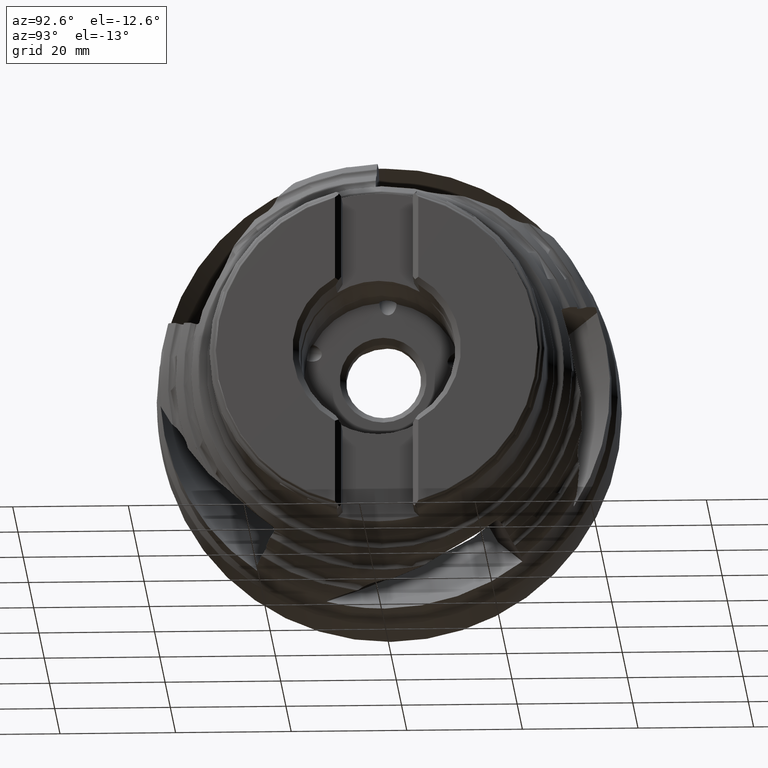
[diagram: clean part render]
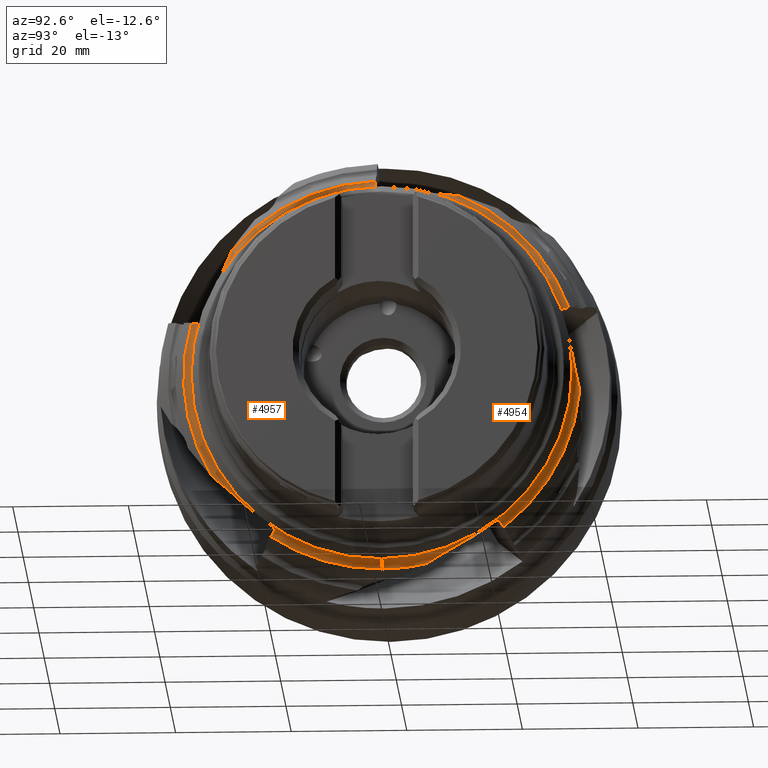
[diagram: same view with one multi-face feature highlighted, each face labeled with its STEP entity id]
A machine part, auxiliary view. The highlighted faces form ONE feature: a constant-radius fillet chain: 2 tangent blend faces with common blend radius 1.5 mm. The faces share edges in the B-rep.
Their STEP definitions:
[1] entity #4954 (Torus):
#315 = EDGE_CURVE ( 'NONE', #6890, #6876, #1453, .T. ) ;
#323 = EDGE_CURVE ( 'NONE', #6885, #6887, #1457, .T. ) ;
#330 = EDGE_CURVE ( 'NONE', #6879, #6878, #1460, .T. ) ;
#331 = EDGE_CURVE ( 'NONE', #6886, #6888, #830, .T. ) ;
#336 = EDGE_CURVE ( 'NONE', #6881, #6882, #838, .T. ) ;
#461 = AXIS2_PLACEMENT_3D ( 'NONE', #1727, #1526, #1543 ) ;
#465 = AXIS2_PLACEMENT_3D ( 'NONE', #1746, #1748, #1697 ) ;
#523 = AXIS2_PLACEMENT_3D ( 'NONE', #2104, #2096, #2163 ) ;
#830 = CIRCLE ( 'NONE', #461, 1.500000000000001300 ) ;
#838 = CIRCLE ( 'NONE', #465, 34.33679836575264900 ) ;
#945 = FACE_OUTER_BOUND ( 'NONE', #6492, .T. ) ;
#949 = TOROIDAL_SURFACE ( 'NONE', #523, 34.35477819669873200, 1.499999999999998200 ) ;
#1143 = CIRCLE ( 'NONE', #1940, 34.33679836575264900 ) ;
#1145 = CIRCLE ( 'NONE', #1926, 1.500000000000001300 ) ;
#1147 = CIRCLE ( 'NONE', #1944, 32.85477819669872400 ) ;
#1260 = CIRCLE ( 'NONE', #1995, 34.33679836575264900 ) ;
#1453 = B_SPLINE_CURVE_WITH_KNOTS ( 'NONE', 3,
 ( #1516, #1580, #1469, #1507, #1689, #1667, #1594, #1577, #1753, #1661, #1600, #1626, #1562, #1622 ),
 .UNSPECIFIED., .F., .F.,
 ( 4, 2, 2, 2, 2, 2, 4 ),
 ( 0.001099749272328053200, 0.004500736626076648800, 0.007901723979825244600, 0.01130271133357383700, 0.01300320501044813200, 0.01385345184888528300, 0.01470369868732243300 ),
 .UNSPECIFIED. ) ;
#1457 = B_SPLINE_CURVE_WITH_KNOTS ( 'NONE', 3,
 ( #1798, #1790, #1794, #1799 ),
 .UNSPECIFIED., .F., .F.,
 ( 4, 4 ),
 ( 1.734723475976807100E-017, 0.0004798398861037539800 ),
 .UNSPECIFIED. ) ;
#1460 = B_SPLINE_CURVE_WITH_KNOTS ( 'NONE', 3,
 ( #1765, #1845, #1800, #1717, #1623, #1617, #1656, #1703, #1673, #1536 ),
 .UNSPECIFIED., .F., .F.,
 ( 4, 2, 2, 2, 4 ),
 ( 0.0002260114413573287000, 0.0005694754351961963100, 0.0009129394290350639700, 0.001256403422873931500, 0.001599867416712799100 ),
 .UNSPECIFIED. ) ;
#1469 = CARTESIAN_POINT ( 'NONE',  ( 35.04683401583235300, 2.268914078732316300, 32.81891195447445100 ) ) ;
#1507 = CARTESIAN_POINT ( 'NONE',  ( 34.86144128666849400, 4.517259381532301000, 32.63351922531059300 ) ) ;
#1516 = CARTESIAN_POINT ( 'NONE',  ( 35.09986830833947400, 4.354196652457896800E-020, 32.87194624698155800 ) ) ;
#1526 = DIRECTION ( 'NONE',  ( -0.0000000000000000000, 1.000000000000000000, 1.224646799147353200E-016 ) ) ;
#1536 = CARTESIAN_POINT ( 'NONE',  ( 34.18125024197927800, 31.39449931361287200, 11.35729962702577300 ) ) ;
#1543 = DIRECTION ( 'NONE',  ( 0.0000000000000000000, -1.224646799147349500E-016, 1.000000000000000000 ) ) ;
#1560 = B_SPLINE_CURVE_WITH_KNOTS ( 'NONE', 3,
 ( #2302, #2321, #2322, #2323, #2324, #2325, #2326, #2327, #2328, #2329, #2330, #2331, #2332, #2333 ),
 .UNSPECIFIED., .F., .F.,
 ( 4, 2, 2, 2, 2, 2, 4 ),
 ( 0.007002110957614750300, 0.01042772690232394100, 0.01385334284703313200, 0.01727895879174232500, 0.01899176676409692500, 0.01984817075027422300, 0.02070457473645152500 ),
 .UNSPECIFIED. ) ;
#1562 = CARTESIAN_POINT ( 'NONE',  ( 33.82758236557923200, 13.15464473688919800, 31.59966030422133800 ) ) ;
#1577 = CARTESIAN_POINT ( 'NONE',  ( 34.05401712779833900, 10.63270310376406500, 31.82609506644044800 ) ) ;
#1580 = CARTESIAN_POINT ( 'NONE',  ( 35.09986830833947400, 1.133785510982318900, 32.87194624698155100 ) ) ;
#1590 = B_SPLINE_CURVE_WITH_KNOTS ( 'NONE', 3,
 ( #2639, #2657, #2658, #2659, #2660, #2661 ),
 .UNSPECIFIED., .F., .F.,
 ( 4, 2, 4 ),
 ( 0.002022708556577343900, 0.002538235437473716800, 0.003053762318370089200 ),
 .UNSPECIFIED. ) ;
#1594 = CARTESIAN_POINT ( 'NONE',  ( 34.27405978638537200, 8.964817630175950600, 32.04613772502745700 ) ) ;
#1599 = B_SPLINE_CURVE_WITH_KNOTS ( 'NONE', 3,
 ( #2709, #2713, #2714, #2715 ),
 .UNSPECIFIED., .F., .F.,
 ( 4, 4 ),
 ( 5.204170427930421300E-018, 0.0002260114413573287000 ),
 .UNSPECIFIED. ) ;
#1600 = CARTESIAN_POINT ( 'NONE',  ( 33.87691074784719800, 12.31047665211210100, 31.64898868648930000 ) ) ;
#1604 = B_SPLINE_CURVE_WITH_KNOTS ( 'NONE', 3,
 ( #2723, #2739, #2740, #2741, #2742, #2743 ),
 .UNSPECIFIED., .F., .F.,
 ( 4, 2, 4 ),
 ( 0.0004798398861037539800, 0.001039853651408272200, 0.001599867416712790200 ),
 .UNSPECIFIED. ) ;
#1610 = B_SPLINE_CURVE_WITH_KNOTS ( 'NONE', 3,
 ( #2744, #2757, #2758, #2759, #2760, #2761, #2762, #2763, #2764, #2765, #2766, #2767, #2768, #2769 ),
 .UNSPECIFIED., .F., .F.,
 ( 4, 2, 2, 2, 2, 2, 4 ),
 ( 0.003541086446675421200, 0.006961146536852033000, 0.01038120662702864800, 0.01380126671720526300, 0.01551129676229357100, 0.01636631178483772400, 0.01722132680738187500 ),
 .UNSPECIFIED. ) ;
#1617 = CARTESIAN_POINT ( 'NONE',  ( 34.60447577448460500, 31.11406655946935700, 11.10542071639351700 ) ) ;
#1622 = CARTESIAN_POINT ( 'NONE',  ( 33.82627103026551700, 13.43726402395549400, 31.59834896890761900 ) ) ;
#1623 = CARTESIAN_POINT ( 'NONE',  ( 34.77307937314667200, 31.08547222042608700, 10.94924146412639700 ) ) ;
#1626 = CARTESIAN_POINT ( 'NONE',  ( 33.84017839001941000, 12.87294269956251600, 31.61225632866152000 ) ) ;
#1656 = CARTESIAN_POINT ( 'NONE',  ( 34.51636299049276600, 31.14382836605550500, 11.17322802261257300 ) ) ;
#1661 = CARTESIAN_POINT ( 'NONE',  ( 33.90130511847371500, 12.02956182918720400, 31.67338305711581000 ) ) ;
#1667 = CARTESIAN_POINT ( 'NONE',  ( 34.43725377605961300, 7.856636565922880100, 32.20933171470170500 ) ) ;
#1673 = CARTESIAN_POINT ( 'NONE',  ( 34.25652023321642000, 31.30988117257353700, 11.32980552634348300 ) ) ;
#1689 = CARTESIAN_POINT ( 'NONE',  ( 34.73032573723448700, 5.632717076338067000, 32.50240367587658600 ) ) ;
#1697 = DIRECTION ( 'NONE',  ( 0.0000000000000000000, 0.0000000000000000000, 1.000000000000000000 ) ) ;
#1703 = CARTESIAN_POINT ( 'NONE',  ( 34.34110969438432200, 31.24216656594062900, 11.28638469635522600 ) ) ;
#1717 = CARTESIAN_POINT ( 'NONE',  ( 34.85074921128180100, 31.08706996902821700, 10.86358628769541000 ) ) ;
#1727 = CARTESIAN_POINT ( 'NONE',  ( 35.32616326828768600, 4.207246915400437300E-015, -34.35477819669873200 ) ) ;
#1746 = CARTESIAN_POINT ( 'NONE',  ( 33.82627103026551700, 0.0000000000000000000, 0.0000000000000000000 ) ) ;
#1748 = DIRECTION ( 'NONE',  ( -1.000000000000000000, -0.0000000000000000000, -0.0000000000000000000 ) ) ;
#1753 = CARTESIAN_POINT ( 'NONE',  ( 33.98481882349442900, 11.18960613829630700, 31.75689676213652000 ) ) ;
#1765 = CARTESIAN_POINT ( 'NONE',  ( 35.06764044308788200, 31.16648417471704100, 10.46719314166492200 ) ) ;
#1790 = CARTESIAN_POINT ( 'NONE',  ( 35.09930682461385500, 19.53388613575912200, -26.43906706709187700 ) ) ;
#1794 = CARTESIAN_POINT ( 'NONE',  ( 35.04739322108449100, 19.66372318271217200, -26.35057720417948700 ) ) ;
#1798 = CARTESIAN_POINT ( 'NONE',  ( 35.09973634728064700, 19.40246935280013600, -26.53507786801925400 ) ) ;
#1799 = CARTESIAN_POINT ( 'NONE',  ( 34.96565778634457200, 19.78522031556243700, -26.28445184842701800 ) ) ;
#1800 = CARTESIAN_POINT ( 'NONE',  ( 34.98293922455069100, 31.11258910392777500, 10.67530709948415300 ) ) ;
#1845 = CARTESIAN_POINT ( 'NONE',  ( 35.03615939428723900, 31.13654391811532900, 10.57364238398023900 ) ) ;
#1926 = AXIS2_PLACEMENT_3D ( 'NONE', #2337, #2339, #2340 ) ;
#1940 = AXIS2_PLACEMENT_3D ( 'NONE', #2320, #2335, #2336 ) ;
#1944 = AXIS2_PLACEMENT_3D ( 'NONE', #2334, #2341, #2342 ) ;
#1995 = AXIS2_PLACEMENT_3D ( 'NONE', #2860, #2861, #2862 ) ;
#2096 = DIRECTION ( 'NONE',  ( -1.000000000000000000, -0.0000000000000000000, -0.0000000000000000000 ) ) ;
#2104 = CARTESIAN_POINT ( 'NONE',  ( 35.32616326828768600, 0.0000000000000000000, 0.0000000000000000000 ) ) ;
#2163 = DIRECTION ( 'NONE',  ( 0.0000000000000000000, 0.0000000000000000000, 1.000000000000000000 ) ) ;
#2302 = CARTESIAN_POINT ( 'NONE',  ( 35.09973634728064700, 19.40246935280013600, -26.53507786801925400 ) ) ;
#2320 = CARTESIAN_POINT ( 'NONE',  ( 33.82627103026551700, 0.0000000000000000000, 0.0000000000000000000 ) ) ;
#2321 = CARTESIAN_POINT ( 'NONE',  ( 35.10274523196889600, 18.48187079863964800, -27.20765105484825200 ) ) ;
#2322 = CARTESIAN_POINT ( 'NONE',  ( 35.05246093961595500, 17.53380769627639400, -27.83430441439914900 ) ) ;
#2323 = CARTESIAN_POINT ( 'NONE',  ( 34.86984145578198000, 15.59539670015078100, -29.01691234380295400 ) ) ;
#2324 = CARTESIAN_POINT ( 'NONE',  ( 34.73849776581628400, 14.60583758616947700, -29.57351939487243100 ) ) ;
#2325 = CARTESIAN_POINT ( 'NONE',  ( 34.44398989888866000, 12.61810133176931200, -30.65366257472124900 ) ) ;
#2326 = CARTESIAN_POINT ( 'NONE',  ( 34.27945271686851200, 11.61770613821373700, -31.17711308584840400 ) ) ;
#2327 = CARTESIAN_POINT ( 'NONE',  ( 34.05706117549890200, 10.12633344961922300, -31.98576770646424800 ) ) ;
#2328 = CARTESIAN_POINT ( 'NONE',  ( 33.98702751029912200, 9.630738653757251900, -32.25927203141572600 ) ) ;
#2329 = CARTESIAN_POINT ( 'NONE',  ( 33.90247179963162700, 8.896255449728840900, -32.68838870897717900 ) ) ;
#2330 = CARTESIAN_POINT ( 'NONE',  ( 33.87776152550586800, 8.652916637372749500, -32.83464112630611700 ) ) ;
#2331 = CARTESIAN_POINT ( 'NONE',  ( 33.84041908950681000, 8.171414138882354900, -33.13831537945993900 ) ) ;
#2332 = CARTESIAN_POINT ( 'NONE',  ( 33.82759198821285200, 7.933166611062579100, -33.29555717145956400 ) ) ;
#2333 = CARTESIAN_POINT ( 'NONE',  ( 33.82627103026551700, 7.702068567432211100, -33.46182693447752900 ) ) ;
#2334 = CARTESIAN_POINT ( 'NONE',  ( 35.32616326828768600, 0.0000000000000000000, 0.0000000000000000000 ) ) ;
#2335 = DIRECTION ( 'NONE',  ( -1.000000000000000000, -0.0000000000000000000, -0.0000000000000000000 ) ) ;
#2336 = DIRECTION ( 'NONE',  ( 0.0000000000000000000, 0.0000000000000000000, 1.000000000000000000 ) ) ;
#2337 = CARTESIAN_POINT ( 'NONE',  ( 35.32616326828768600, 0.0000000000000000000, 34.35477819669873200 ) ) ;
#2339 = DIRECTION ( 'NONE',  ( 0.0000000000000000000, -1.000000000000000000, 0.0000000000000000000 ) ) ;
#2340 = DIRECTION ( 'NONE',  ( 0.0000000000000000000, 0.0000000000000000000, -1.000000000000000000 ) ) ;
#2341 = DIRECTION ( 'NONE',  ( -1.000000000000000000, -0.0000000000000000000, -0.0000000000000000000 ) ) ;
#2342 = DIRECTION ( 'NONE',  ( 0.0000000000000000000, 0.0000000000000000000, 1.000000000000000000 ) ) ;
#2639 = CARTESIAN_POINT ( 'NONE',  ( 34.18125024197927800, 20.50286763559831000, -26.34834455307607800 ) ) ;
#2657 = CARTESIAN_POINT ( 'NONE',  ( 34.06877970659176900, 20.58101111361476800, -26.45589982342065800 ) ) ;
#2658 = CARTESIAN_POINT ( 'NONE',  ( 33.98161448480878700, 20.66858975805927300, -26.57644148625345400 ) ) ;
#2659 = CARTESIAN_POINT ( 'NONE',  ( 33.86005610663590200, 20.86014875289247100, -26.84009982344548500 ) ) ;
#2660 = CARTESIAN_POINT ( 'NONE',  ( 33.82835214958462400, 20.96012617059541600, -26.97770693362721800 ) ) ;
#2661 = CARTESIAN_POINT ( 'NONE',  ( 33.82627103026554500, 21.06222319574180100, -27.11823143317259300 ) ) ;
#2709 = CARTESIAN_POINT ( 'NONE',  ( 35.09973634728064000, 31.23205147963332400, 10.25305490191716700 ) ) ;
#2713 = CARTESIAN_POINT ( 'NONE',  ( 35.09953403596841800, 31.20817026469866900, 10.32589903081031000 ) ) ;
#2714 = CARTESIAN_POINT ( 'NONE',  ( 35.08835608531507000, 31.18618592124642700, 10.39714577973197700 ) ) ;
#2715 = CARTESIAN_POINT ( 'NONE',  ( 35.06764044308788200, 31.16648417471704100, 10.46719314166492200 ) ) ;
#2723 = CARTESIAN_POINT ( 'NONE',  ( 34.96565778634457200, 19.78522031556243700, -26.28445184842701800 ) ) ;
#2739 = CARTESIAN_POINT ( 'NONE',  ( 34.87026561513683700, 19.92701775427404300, -26.20727796078351800 ) ) ;
#2740 = CARTESIAN_POINT ( 'NONE',  ( 34.73479533585118900, 20.06109157676003800, -26.16051697668862300 ) ) ;
#2741 = CARTESIAN_POINT ( 'NONE',  ( 34.45260669057667300, 20.30562781364706000, -26.17130861716482200 ) ) ;
#2742 = CARTESIAN_POINT ( 'NONE',  ( 34.30397702546540700, 20.41759821215033800, -26.23098126027328500 ) ) ;
#2743 = CARTESIAN_POINT ( 'NONE',  ( 34.18125024197927800, 20.50286763559831000, -26.34834455307607800 ) ) ;
#2744 = CARTESIAN_POINT ( 'NONE',  ( 35.09973634728064000, 31.23205147963332400, 10.25305490191716700 ) ) ;
#2757 = CARTESIAN_POINT ( 'NONE',  ( 35.10274399171078100, 31.58707959114091700, 9.170123669723986700 ) ) ;
#2758 = CARTESIAN_POINT ( 'NONE',  ( 35.05251197441403800, 31.88984009994692300, 8.075768413445718600 ) ) ;
#2759 = CARTESIAN_POINT ( 'NONE',  ( 34.87024660562452300, 32.41505332638350000, 5.869505189588328300 ) ) ;
#2760 = CARTESIAN_POINT ( 'NONE',  ( 34.73916772524143700, 32.63847560404671100, 4.757701956451888300 ) ) ;
#2761 = CARTESIAN_POINT ( 'NONE',  ( 34.44476090236824500, 33.05161655469196800, 2.533464362260764000 ) ) ;
#2762 = CARTESIAN_POINT ( 'NONE',  ( 34.28013597797244200, 33.24044495888041700, 1.419572845203360000 ) ) ;
#2763 = CARTESIAN_POINT ( 'NONE',  ( 34.05765583528301500, 33.54859482563534800, -0.2487757920777781100 ) ) ;
#2764 = CARTESIAN_POINT ( 'NONE',  ( 33.98759586819763000, 33.65548697039542200, -0.8044748022489047700 ) ) ;
#2765 = CARTESIAN_POINT ( 'NONE',  ( 33.90288829348293800, 33.83658260189934500, -1.635949315968758400 ) ) ;
#2766 = CARTESIAN_POINT ( 'NONE',  ( 33.87811177676150700, 33.90047080626530400, -1.912755483121810100 ) ) ;
#2767 = CARTESIAN_POINT ( 'NONE',  ( 33.84060963572458300, 34.04051984543970400, -2.465141583083271900 ) ) ;
#2768 = CARTESIAN_POINT ( 'NONE',  ( 33.82760783763753000, 34.11639942484212200, -2.740749617857284500 ) ) ;
#2769 = CARTESIAN_POINT ( 'NONE',  ( 33.82627103026551700, 34.20415863235320600, -3.015170685578336700 ) ) ;
#2815 = CARTESIAN_POINT ( 'NONE',  ( 34.18125024197927800, 31.39449931361287200, 11.35729962702577300 ) ) ;
#2821 = CARTESIAN_POINT ( 'NONE',  ( 34.06877970659176900, 31.52093811704261800, 11.39838208462822100 ) ) ;
#2822 = CARTESIAN_POINT ( 'NONE',  ( 33.98161448480878700, 31.66264334044247900, 11.44442490276991900 ) ) ;
#2823 = CARTESIAN_POINT ( 'NONE',  ( 33.86005610663590200, 31.97259230493335000, 11.54513342616000000 ) ) ;
#2824 = CARTESIAN_POINT ( 'NONE',  ( 33.82835214958462400, 32.13435916488416000, 11.59769466515577300 ) ) ;
#2825 = CARTESIAN_POINT ( 'NONE',  ( 33.82627103026554500, 32.29955562172126100, 11.65137024773003900 ) ) ;
#2860 = CARTESIAN_POINT ( 'NONE',  ( 33.82627103026551700, 0.0000000000000000000, 0.0000000000000000000 ) ) ;
#2861 = DIRECTION ( 'NONE',  ( -1.000000000000000000, -0.0000000000000000000, -0.0000000000000000000 ) ) ;
#2862 = DIRECTION ( 'NONE',  ( 0.0000000000000000000, 0.0000000000000000000, 1.000000000000000000 ) ) ;
#3550 = B_SPLINE_CURVE_WITH_KNOTS ( 'NONE', 3,
 ( #2815, #2821, #2822, #2823, #2824, #2825 ),
 .UNSPECIFIED., .F., .F.,
 ( 4, 2, 4 ),
 ( 0.002022708556577493500, 0.002538235437473866000, 0.003053762318370238000 ),
 .UNSPECIFIED. ) ;
#3833 = CARTESIAN_POINT ( 'NONE',  ( 33.82627103026551700, 13.43726402395549400, 31.59834896890761900 ) ) ;
#3834 = CARTESIAN_POINT ( 'NONE',  ( 33.82627103026554500, 32.29955562172126100, 11.65137024773003900 ) ) ;
#3835 = CARTESIAN_POINT ( 'NONE',  ( 34.18125024197927800, 31.39449931361287200, 11.35729962702577300 ) ) ;
#3836 = CARTESIAN_POINT ( 'NONE',  ( 35.06764044308788200, 31.16648417471704100, 10.46719314166492200 ) ) ;
#3837 = CARTESIAN_POINT ( 'NONE',  ( 35.09973634728064000, 31.23205147963332400, 10.25305490191716700 ) ) ;
#3838 = CARTESIAN_POINT ( 'NONE',  ( 33.82627103026551700, 34.20415863235320600, -3.015170685578336700 ) ) ;
#3839 = CARTESIAN_POINT ( 'NONE',  ( 33.82627103026554500, 21.06222319574180100, -27.11823143317259300 ) ) ;
#3840 = CARTESIAN_POINT ( 'NONE',  ( 34.18125024197927800, 20.50286763559831000, -26.34834455307607800 ) ) ;
#3842 = CARTESIAN_POINT ( 'NONE',  ( 35.09973634728064700, 19.40246935280013600, -26.53507786801925400 ) ) ;
#3843 = CARTESIAN_POINT ( 'NONE',  ( 33.82627103026551700, 4.205045021158705800E-015, -34.33679836575264900 ) ) ;
#3844 = CARTESIAN_POINT ( 'NONE',  ( 34.96565778634457200, 19.78522031556243700, -26.28445184842701800 ) ) ;
#3845 = CARTESIAN_POINT ( 'NONE',  ( 35.32616326828768600, 4.023549895528334600E-015, -32.85477819669872400 ) ) ;
#3846 = CARTESIAN_POINT ( 'NONE',  ( 35.32616326828768600, 0.0000000000000000000, 32.85477819669872400 ) ) ;
#3847 = CARTESIAN_POINT ( 'NONE',  ( 35.09986830833947400, 4.354196652457896800E-020, 32.87194624698155800 ) ) ;
#3858 = CARTESIAN_POINT ( 'NONE',  ( 33.82627103026551700, 7.702068567432211100, -33.46182693447752900 ) ) ;
#4954 = ADVANCED_FACE ( 'NONE', ( #945 ), #949, .F. ) ;
#5067 = EDGE_CURVE ( 'NONE', #6885, #6901, #1560, .T. ) ;
#5068 = EDGE_CURVE ( 'NONE', #6901, #6886, #1143, .T. ) ;
#5069 = EDGE_CURVE ( 'NONE', #6890, #6889, #1145, .T. ) ;
#5070 = EDGE_CURVE ( 'NONE', #6889, #6888, #1147, .T. ) ;
#5146 = EDGE_CURVE ( 'NONE', #6883, #6882, #1590, .T. ) ;
#5156 = EDGE_CURVE ( 'NONE', #6880, #6879, #1599, .T. ) ;
#5161 = EDGE_CURVE ( 'NONE', #6887, #6883, #1604, .T. ) ;
#5163 = EDGE_CURVE ( 'NONE', #6880, #6881, #1610, .T. ) ;
#5177 = EDGE_CURVE ( 'NONE', #6878, #6877, #3550, .T. ) ;
#5189 = EDGE_CURVE ( 'NONE', #6876, #6877, #1260, .T. ) ;
#5437 = ORIENTED_EDGE ( 'NONE', *, *, #336, .F. ) ;
#5438 = ORIENTED_EDGE ( 'NONE', *, *, #5156, .T. ) ;
#5439 = ORIENTED_EDGE ( 'NONE', *, *, #5163, .F. ) ;
#5441 = ORIENTED_EDGE ( 'NONE', *, *, #5146, .T. ) ;
#5442 = ORIENTED_EDGE ( 'NONE', *, *, #323, .T. ) ;
#5443 = ORIENTED_EDGE ( 'NONE', *, *, #5161, .T. ) ;
#5445 = ORIENTED_EDGE ( 'NONE', *, *, #5067, .F. ) ;
#5446 = ORIENTED_EDGE ( 'NONE', *, *, #315, .F. ) ;
#5447 = ORIENTED_EDGE ( 'NONE', *, *, #5189, .F. ) ;
#5448 = ORIENTED_EDGE ( 'NONE', *, *, #5177, .T. ) ;
#5449 = ORIENTED_EDGE ( 'NONE', *, *, #330, .T. ) ;
#5453 = ORIENTED_EDGE ( 'NONE', *, *, #331, .F. ) ;
#5454 = ORIENTED_EDGE ( 'NONE', *, *, #5070, .T. ) ;
#5460 = ORIENTED_EDGE ( 'NONE', *, *, #5068, .F. ) ;
#5462 = ORIENTED_EDGE ( 'NONE', *, *, #5069, .T. ) ;
#6492 = EDGE_LOOP ( 'NONE', ( #5462, #5454, #5453, #5460, #5445, #5442, #5443, #5441, #5437, #5439, #5438, #5449, #5448, #5447, #5446 ) ) ;
#6876 = VERTEX_POINT ( 'NONE', #3833 ) ;
#6877 = VERTEX_POINT ( 'NONE', #3834 ) ;
#6878 = VERTEX_POINT ( 'NONE', #3835 ) ;
#6879 = VERTEX_POINT ( 'NONE', #3836 ) ;
#6880 = VERTEX_POINT ( 'NONE', #3837 ) ;
#6881 = VERTEX_POINT ( 'NONE', #3838 ) ;
#6882 = VERTEX_POINT ( 'NONE', #3839 ) ;
#6883 = VERTEX_POINT ( 'NONE', #3840 ) ;
#6885 = VERTEX_POINT ( 'NONE', #3842 ) ;
#6886 = VERTEX_POINT ( 'NONE', #3843 ) ;
#6887 = VERTEX_POINT ( 'NONE', #3844 ) ;
#6888 = VERTEX_POINT ( 'NONE', #3845 ) ;
#6889 = VERTEX_POINT ( 'NONE', #3846 ) ;
#6890 = VERTEX_POINT ( 'NONE', #3847 ) ;
#6901 = VERTEX_POINT ( 'NONE', #3858 ) ;
[2] entity #4957 (Torus):
#331 = EDGE_CURVE ( 'NONE', #6886, #6888, #830, .T. ) ;
#461 = AXIS2_PLACEMENT_3D ( 'NONE', #1727, #1526, #1543 ) ;
#527 = AXIS2_PLACEMENT_3D ( 'NONE', #2139, #2116, #2225 ) ;
#830 = CIRCLE ( 'NONE', #461, 1.500000000000001300 ) ;
#948 = FACE_OUTER_BOUND ( 'NONE', #6297, .T. ) ;
#955 = TOROIDAL_SURFACE ( 'NONE', #527, 34.35477819669873200, 1.499999999999998200 ) ;
#1145 = CIRCLE ( 'NONE', #1926, 1.500000000000001300 ) ;
#1225 = CIRCLE ( 'NONE', #1970, 34.33679836575264900 ) ;
#1236 = CIRCLE ( 'NONE', #1980, 32.85477819669872400 ) ;
#1240 = CIRCLE ( 'NONE', #1979, 34.33679836575264900 ) ;
#1261 = CIRCLE ( 'NONE', #1993, 34.33679836575264900 ) ;
#1526 = DIRECTION ( 'NONE',  ( -0.0000000000000000000, 1.000000000000000000, 1.224646799147353200E-016 ) ) ;
#1543 = DIRECTION ( 'NONE',  ( 0.0000000000000000000, -1.224646799147349500E-016, 1.000000000000000000 ) ) ;
#1553 = B_SPLINE_CURVE_WITH_KNOTS ( 'NONE', 3,
 ( #2299, #2303, #2304, #2305, #2306, #2307 ),
 .UNSPECIFIED., .F., .F.,
 ( 4, 2, 4 ),
 ( 0.0005539644633828249500, 0.001069532628606011600, 0.001585100793829198400 ),
 .UNSPECIFIED. ) ;
#1591 = B_SPLINE_CURVE_WITH_KNOTS ( 'NONE', 3,
 ( #2662, #2666, #2667, #2668, #2669, #2670, #2671, #2672, #2673, #2674, #2675, #2676, #2677, #2678 ),
 .UNSPECIFIED., .F., .F.,
 ( 4, 2, 2, 2, 2, 2, 4 ),
 ( 0.002832512347660119100, 0.006256167819388971600, 0.009679823291117824900, 0.01310347876284667300, 0.01481530649871109000, 0.01567122036664329900, 0.01652713423457550400 ),
 .UNSPECIFIED. ) ;
#1593 = B_SPLINE_CURVE_WITH_KNOTS ( 'NONE', 3,
 ( #2685, #2689, #2690, #2691, #2692, #2693 ),
 .UNSPECIFIED., .F., .F.,
 ( 4, 2, 4 ),
 ( 0.002022708556577620600, 0.002538235437474000400, 0.003053762318370380200 ),
 .UNSPECIFIED. ) ;
#1596 = B_SPLINE_CURVE_WITH_KNOTS ( 'NONE', 3,
 ( #2682, #2695, #2696, #2697, #2698, #2699, #2700, #2701, #2702, #2703, #2704, #2705 ),
 .UNSPECIFIED., .F., .F.,
 ( 4, 2, 2, 2, 2, 4 ),
 ( 0.0000000000000000000, 0.0003999668541782024300, 0.0007999337083564048500, 0.001199900562534607300, 0.001399883989623700500, 0.001599867416712793700 ),
 .UNSPECIFIED. ) ;
#1602 = B_SPLINE_CURVE_WITH_KNOTS ( 'NONE', 3,
 ( #2720, #2724, #2725, #2726, #2727, #2728, #2729, #2730, #2731, #2732, #2733, #2734, #2735, #2736 ),
 .UNSPECIFIED., .F., .F.,
 ( 4, 2, 2, 2, 2, 2, 4 ),
 ( 0.004969955442742871700, 0.008391299156111132300, 0.01181264286947939500, 0.01523398658284765500, 0.01694465843953178700, 0.01779999436787385600, 0.01865533029621592100 ),
 .UNSPECIFIED. ) ;
#1607 = B_SPLINE_CURVE_WITH_KNOTS ( 'NONE', 3,
 ( #2738, #2745, #2746, #2747, #2748, #2749, #2750, #2751, #2752, #2753, #2754, #2755 ),
 .UNSPECIFIED., .F., .F.,
 ( 4, 2, 2, 2, 2, 4 ),
 ( 6.776263578034403900E-020, 0.0003999668541781233300, 0.0007999337083562467700, 0.001199900562534370300, 0.001399883989623426400, 0.001599867416712482700 ),
 .UNSPECIFIED. ) ;
#1613 = B_SPLINE_CURVE_WITH_KNOTS ( 'NONE', 3,
 ( #2790, #2794, #2795, #2796, #2797, #2798, #2799, #2800, #2801, #2802, #2803, #2804 ),
 .UNSPECIFIED., .F., .F.,
 ( 4, 2, 2, 2, 2, 4 ),
 ( 3.469446951953614200E-018, 0.0003999668541782058900, 0.0007999337083564083200, 0.001199900562534610700, 0.001399883989623704400, 0.001599867416712798200 ),
 .UNSPECIFIED. ) ;
#1727 = CARTESIAN_POINT ( 'NONE',  ( 35.32616326828768600, 4.207246915400437300E-015, -34.35477819669873200 ) ) ;
#1926 = AXIS2_PLACEMENT_3D ( 'NONE', #2337, #2339, #2340 ) ;
#1970 = AXIS2_PLACEMENT_3D ( 'NONE', #2656, #2663, #2664 ) ;
#1979 = AXIS2_PLACEMENT_3D ( 'NONE', #2778, #2779, #2780 ) ;
#1980 = AXIS2_PLACEMENT_3D ( 'NONE', #2756, #2771, #2772 ) ;
#1993 = AXIS2_PLACEMENT_3D ( 'NONE', #2856, #2864, #2865 ) ;
#2116 = DIRECTION ( 'NONE',  ( -1.000000000000000000, -0.0000000000000000000, -0.0000000000000000000 ) ) ;
#2139 = CARTESIAN_POINT ( 'NONE',  ( 35.32616326828768600, 0.0000000000000000000, 0.0000000000000000000 ) ) ;
#2225 = DIRECTION ( 'NONE',  ( 0.0000000000000000000, 0.0000000000000000000, 1.000000000000000000 ) ) ;
#2299 = CARTESIAN_POINT ( 'NONE',  ( 34.18125024197948400, -1.100000000000002100, 33.36754174299422000 ) ) ;
#2303 = CARTESIAN_POINT ( 'NONE',  ( 34.06923645151454100, -1.100000000000001900, 33.49994747383661300 ) ) ;
#2304 = CARTESIAN_POINT ( 'NONE',  ( 33.98138296355968200, -1.100000000000002100, 33.65010667120982600 ) ) ;
#2305 = CARTESIAN_POINT ( 'NONE',  ( 33.86028953672717300, -1.100000000000001900, 33.97475795449895500 ) ) ;
#2306 = CARTESIAN_POINT ( 'NONE',  ( 33.82834462896003200, -1.100000000000002100, 34.14610412668474000 ) ) ;
#2307 = CARTESIAN_POINT ( 'NONE',  ( 33.82627103026551700, -1.100000000000002300, 34.31917426177899700 ) ) ;
#2337 = CARTESIAN_POINT ( 'NONE',  ( 35.32616326828768600, 0.0000000000000000000, 34.35477819669873200 ) ) ;
#2339 = DIRECTION ( 'NONE',  ( 0.0000000000000000000, -1.000000000000000000, 0.0000000000000000000 ) ) ;
#2340 = DIRECTION ( 'NONE',  ( 0.0000000000000000000, 0.0000000000000000000, -1.000000000000000000 ) ) ;
#2656 = CARTESIAN_POINT ( 'NONE',  ( 33.82627103026551700, 0.0000000000000000000, 0.0000000000000000000 ) ) ;
#2662 = CARTESIAN_POINT ( 'NONE',  ( 35.09973634728064000, -31.29385487850846200, 10.06284359865769500 ) ) ;
#2663 = DIRECTION ( 'NONE',  ( -1.000000000000000000, -0.0000000000000000000, -0.0000000000000000000 ) ) ;
#2664 = DIRECTION ( 'NONE',  ( 0.0000000000000000000, 0.0000000000000000000, 1.000000000000000000 ) ) ;
#2666 = CARTESIAN_POINT ( 'NONE',  ( 35.10275159733462400, -30.94366433118102900, 11.15037683518552700 ) ) ;
#2667 = CARTESIAN_POINT ( 'NONE',  ( 35.05218908000477300, -30.54414339379909300, 12.21635210372982900 ) ) ;
#2668 = CARTESIAN_POINT ( 'NONE',  ( 34.86957477607551700, -29.67167893180843700, 14.31056931399014900 ) ) ;
#2669 = CARTESIAN_POINT ( 'NONE',  ( 34.73842996126909800, -29.19901035979270500, 15.34090006101292000 ) ) ;
#2670 = CARTESIAN_POINT ( 'NONE',  ( 34.44388474982513100, -28.22569669996952200, 17.38328316167886500 ) ) ;
#2671 = CARTESIAN_POINT ( 'NONE',  ( 34.27934624156044000, -27.72404102894975600, 18.39476276404606400 ) ) ;
#2672 = CARTESIAN_POINT ( 'NONE',  ( 34.05695081873986400, -26.99276445333381200, 19.92571393580896500 ) ) ;
#2673 = CARTESIAN_POINT ( 'NONE',  ( 33.98686982480060000, -26.75238133650150700, 20.43875023678038600 ) ) ;
#2674 = CARTESIAN_POINT ( 'NONE',  ( 33.90237337134774300, -26.41054471276680700, 21.21737891882120400 ) ) ;
#2675 = CARTESIAN_POINT ( 'NONE',  ( 33.87770445320826000, -26.29976786120694100, 21.47848471513633200 ) ) ;
#2676 = CARTESIAN_POINT ( 'NONE',  ( 33.84044574366351600, -26.08916061255507300, 22.00609546028129400 ) ) ;
#2677 = CARTESIAN_POINT ( 'NONE',  ( 33.82759779402281500, -25.98909626499362000, 22.27248501702055300 ) ) ;
#2678 = CARTESIAN_POINT ( 'NONE',  ( 33.82627103026551700, -25.89947274974256400, 22.54402433674381000 ) ) ;
#2682 = CARTESIAN_POINT ( 'NONE',  ( 35.09973634728064700, -19.24066595392476800, -26.65263491847802500 ) ) ;
#2685 = CARTESIAN_POINT ( 'NONE',  ( 34.18125024197928500, -18.72303024797302800, -27.64147210811980700 ) ) ;
#2689 = CARTESIAN_POINT ( 'NONE',  ( 34.06877970659177600, -18.80117372598948200, -27.74902737846439000 ) ) ;
#2690 = CARTESIAN_POINT ( 'NONE',  ( 33.98161448480878700, -18.88875237043398800, -27.86956904129718600 ) ) ;
#2691 = CARTESIAN_POINT ( 'NONE',  ( 33.86005610663590200, -19.08031136526718500, -28.13322737848922400 ) ) ;
#2692 = CARTESIAN_POINT ( 'NONE',  ( 33.82835214958462400, -19.18028878297013100, -28.27083448867096000 ) ) ;
#2693 = CARTESIAN_POINT ( 'NONE',  ( 33.82627103026554500, -19.28238580811651200, -28.41135898821633200 ) ) ;
#2695 = CARTESIAN_POINT ( 'NONE',  ( 35.09937832195843300, -19.13070361913523600, -26.73208468754546600 ) ) ;
#2696 = CARTESIAN_POINT ( 'NONE',  ( 35.06353163411265000, -19.02608961916613900, -26.81228940479498500 ) ) ;
#2697 = CARTESIAN_POINT ( 'NONE',  ( 34.94437005232788400, -18.84605892962762000, -26.97111436205555200 ) ) ;
#2698 = CARTESIAN_POINT ( 'NONE',  ( 34.86171299968991400, -18.77066304679943100, -27.05048167872861200 ) ) ;
#2699 = CARTESIAN_POINT ( 'NONE',  ( 34.67728185570749100, -18.66516325271799600, -27.21281199723125300 ) ) ;
#2700 = CARTESIAN_POINT ( 'NONE',  ( 34.57383872568833300, -18.63443683398329400, -27.29726387861104800 ) ) ;
#2701 = CARTESIAN_POINT ( 'NONE',  ( 34.42101037173598900, -18.63309788834339300, -27.42623953939048000 ) ) ;
#2702 = CARTESIAN_POINT ( 'NONE',  ( 34.36925435300350500, -18.64024613060786700, -27.47059309154003200 ) ) ;
#2703 = CARTESIAN_POINT ( 'NONE',  ( 34.27154653310358900, -18.67008557404140500, -27.55705078049591700 ) ) ;
#2704 = CARTESIAN_POINT ( 'NONE',  ( 34.22507652675611900, -18.69258015445119300, -27.59956114991970500 ) ) ;
#2705 = CARTESIAN_POINT ( 'NONE',  ( 34.18125024197928500, -18.72303024797302800, -27.64147210811980700 ) ) ;
#2720 = CARTESIAN_POINT ( 'NONE',  ( 35.09973634728064700, -19.24066595392476800, -26.65263491847802500 ) ) ;
#2724 = CARTESIAN_POINT ( 'NONE',  ( 35.10273794527161300, -20.16256365977642400, -25.98654720786420600 ) ) ;
#2725 = CARTESIAN_POINT ( 'NONE',  ( 35.05249265870490700, -21.05383866511410300, -25.27689142259276500 ) ) ;
#2726 = CARTESIAN_POINT ( 'NONE',  ( 34.86954497585372800, -22.77989281806563300, -23.79670390250308600 ) ) ;
#2727 = CARTESIAN_POINT ( 'NONE',  ( 34.73847014144330100, -23.61279045711893300, -23.02955094078480900 ) ) ;
#2728 = CARTESIAN_POINT ( 'NONE',  ( 34.44401670231762600, -25.25400820944778600, -21.47317197903261700 ) ) ;
#2729 = CARTESIAN_POINT ( 'NONE',  ( 34.27949990127574200, -26.06089513886343000, -20.68358035999190400 ) ) ;
#2730 = CARTESIAN_POINT ( 'NONE',  ( 34.05711708430094100, -27.29074040094464900, -19.51516519541527800 ) ) ;
#2731 = CARTESIAN_POINT ( 'NONE',  ( 33.98704748638341800, -27.70417057356968700, -19.12817980646046900 ) ) ;
#2732 = CARTESIAN_POINT ( 'NONE',  ( 33.90245291499989800, -28.33955698508705700, -18.56197991601888800 ) ) ;
#2733 = CARTESIAN_POINT ( 'NONE',  ( 33.87772439294622000, -28.55405324806064000, -18.37557312462893200 ) ) ;
#2734 = CARTESIAN_POINT ( 'NONE',  ( 33.84039600889661900, -28.99165855963647000, -18.01149383511252800 ) ) ;
#2735 = CARTESIAN_POINT ( 'NONE',  ( 33.82759362645848700, -29.21418862829747800, -17.83399166150288600 ) ) ;
#2736 = CARTESIAN_POINT ( 'NONE',  ( 33.82627103026551700, -29.44401847399794300, -17.66537568559528300 ) ) ;
#2738 = CARTESIAN_POINT ( 'NONE',  ( 35.09973634728064000, -0.1000000000000020200, 32.87181428592273800 ) ) ;
#2745 = CARTESIAN_POINT ( 'NONE',  ( 35.09937832195842600, -0.2356608001417411800, 32.87145626060052500 ) ) ;
#2746 = CARTESIAN_POINT ( 'NONE',  ( 35.06353163411266400, -0.3674384539298173900, 32.87485267351926400 ) ) ;
#2747 = CARTESIAN_POINT ( 'NONE',  ( 34.94437005232790500, -0.6064413088492229800, 32.89752537880313100 ) ) ;
#2748 = CARTESIAN_POINT ( 'NONE',  ( 34.86171299968998500, -0.7140887976175665000, 32.91741829877958700 ) ) ;
#2749 = CARTESIAN_POINT ( 'NONE',  ( 34.67728185570761200, -0.8948552911482837700, 32.98673506206953500 ) ) ;
#2750 = CARTESIAN_POINT ( 'NONE',  ( 34.57383872568848200, -0.9693530564843435600, 33.03699753352469800 ) ) ;
#2751 = CARTESIAN_POINT ( 'NONE',  ( 34.42101037173615900, -1.046246277572417100, 33.14055402245517000 ) ) ;
#2752 = CARTESIAN_POINT ( 'NONE',  ( 34.36925435300366900, -1.066533591940852100, 33.18063843128789600 ) ) ;
#2753 = CARTESIAN_POINT ( 'NONE',  ( 34.27154653310379500, -1.093211529616018800, 33.26812335573440300 ) ) ;
#2754 = CARTESIAN_POINT ( 'NONE',  ( 34.22507652675598400, -1.100000000000013400, 33.31573694965710100 ) ) ;
#2755 = CARTESIAN_POINT ( 'NONE',  ( 34.18125024197948400, -1.100000000000002100, 33.36754174299422000 ) ) ;
#2756 = CARTESIAN_POINT ( 'NONE',  ( 35.32616326828768600, 0.0000000000000000000, 0.0000000000000000000 ) ) ;
#2771 = DIRECTION ( 'NONE',  ( -1.000000000000000000, -0.0000000000000000000, -0.0000000000000000000 ) ) ;
#2772 = DIRECTION ( 'NONE',  ( 0.0000000000000000000, 0.0000000000000000000, 1.000000000000000000 ) ) ;
#2778 = CARTESIAN_POINT ( 'NONE',  ( 33.82627103026551700, 0.0000000000000000000, 0.0000000000000000000 ) ) ;
#2779 = DIRECTION ( 'NONE',  ( -1.000000000000000000, -0.0000000000000000000, -0.0000000000000000000 ) ) ;
#2780 = DIRECTION ( 'NONE',  ( 0.0000000000000000000, 0.0000000000000000000, 1.000000000000000000 ) ) ;
#2790 = CARTESIAN_POINT ( 'NONE',  ( 35.09973634728064000, -31.29385487850846200, 10.06284359865769500 ) ) ;
#2794 = CARTESIAN_POINT ( 'NONE',  ( 35.09937832195842600, -31.33543586890708700, 9.933711874768079000 ) ) ;
#2795 = CARTESIAN_POINT ( 'NONE',  ( 35.06353163411265000, -31.37938758404486400, 9.809433427742622100 ) ) ;
#2796 = CARTESIAN_POINT ( 'NONE',  ( 34.94437005232784800, -31.47480655202137400, 9.589134456399522200 ) ) ;
#2797 = CARTESIAN_POINT ( 'NONE',  ( 34.86171299968990700, -31.52699074662434200, 9.492902861084031600 ) ) ;
#2798 = CARTESIAN_POINT ( 'NONE',  ( 34.67728185570748400, -31.64877482455433400, 9.342403767335476100 ) ) ;
#2799 = CARTESIAN_POINT ( 'NONE',  ( 34.57383872568833300, -31.71959835108866700, 9.287084140022130900 ) ) ;
#2800 = CARTESIAN_POINT ( 'NONE',  ( 34.42101037173597400, -31.84184773675912400, 9.245955056004747900 ) ) ;
#2801 = CARTESIAN_POINT ( 'NONE',  ( 34.36925435300348400, -31.88623939989144400, 9.239047437015326400 ) ) ;
#2802 = CARTESIAN_POINT ( 'NONE',  ( 34.27154653310358200, -31.97768644348041200, 9.240709538953664600 ) ) ;
#2803 = CARTESIAN_POINT ( 'NONE',  ( 34.22507652675611200, -32.02506741495898300, 9.248966729644623200 ) ) ;
#2804 = CARTESIAN_POINT ( 'NONE',  ( 34.18125024197927800, -32.07433670123791100, 9.264975291175982600 ) ) ;
#2820 = CARTESIAN_POINT ( 'NONE',  ( 34.18125024197927800, -32.07433670123791100, 9.264975291175982600 ) ) ;
#2827 = CARTESIAN_POINT ( 'NONE',  ( 34.06877970659176900, -32.20077550466766100, 9.306057748778430400 ) ) ;
#2828 = CARTESIAN_POINT ( 'NONE',  ( 33.98161448480878700, -32.34248072806751400, 9.352100566920128700 ) ) ;
#2829 = CARTESIAN_POINT ( 'NONE',  ( 33.86005610663590200, -32.65242969255839300, 9.452809090310205800 ) ) ;
#2830 = CARTESIAN_POINT ( 'NONE',  ( 33.82835214958462400, -32.81419655250919500, 9.505370329305971900 ) ) ;
#2831 = CARTESIAN_POINT ( 'NONE',  ( 33.82627103026551700, -32.97939300934629600, 9.559045911880232900 ) ) ;
#2853 = CARTESIAN_POINT ( 'NONE',  ( 35.09973634728064000, -0.1000000000000020200, 32.87181428592273800 ) ) ;
#2856 = CARTESIAN_POINT ( 'NONE',  ( 33.82627103026551700, 0.0000000000000000000, 0.0000000000000000000 ) ) ;
#2857 = CARTESIAN_POINT ( 'NONE',  ( 35.09982432041331900, -0.06666575008013979300, 32.87190225905540300 ) ) ;
#2858 = CARTESIAN_POINT ( 'NONE',  ( 35.09986830833945200, -0.03333241672791531500, 32.87194624698153700 ) ) ;
#2859 = CARTESIAN_POINT ( 'NONE',  ( 35.09986830833947400, 4.354196652457896800E-020, 32.87194624698155800 ) ) ;
#2864 = DIRECTION ( 'NONE',  ( -1.000000000000000000, -0.0000000000000000000, -0.0000000000000000000 ) ) ;
#2865 = DIRECTION ( 'NONE',  ( 0.0000000000000000000, 0.0000000000000000000, 1.000000000000000000 ) ) ;
#3551 = B_SPLINE_CURVE_WITH_KNOTS ( 'NONE', 3,
 ( #2820, #2827, #2828, #2829, #2830, #2831 ),
 .UNSPECIFIED., .F., .F.,
 ( 4, 2, 4 ),
 ( 0.002022708556577422000, 0.002538235437473792700, 0.003053762318370163400 ),
 .UNSPECIFIED. ) ;
#3552 = B_SPLINE_CURVE_WITH_KNOTS ( 'NONE', 3,
 ( #2853, #2857, #2858, #2859 ),
 .UNSPECIFIED., .F., .F.,
 ( 4, 4 ),
 ( 0.0009997628757270789200, 0.001099749272328053200 ),
 .UNSPECIFIED. ) ;
#3820 = CARTESIAN_POINT ( 'NONE',  ( 33.82627103026554500, -19.28238580811651200, -28.41135898821633200 ) ) ;
#3822 = CARTESIAN_POINT ( 'NONE',  ( 34.18125024197928500, -18.72303024797302800, -27.64147210811980700 ) ) ;
#3824 = CARTESIAN_POINT ( 'NONE',  ( 35.09973634728064700, -19.24066595392476800, -26.65263491847802500 ) ) ;
#3825 = CARTESIAN_POINT ( 'NONE',  ( 33.82627103026551700, -29.44401847399794300, -17.66537568559528300 ) ) ;
#3826 = CARTESIAN_POINT ( 'NONE',  ( 33.82627103026551700, -32.97939300934629600, 9.559045911880232900 ) ) ;
#3827 = CARTESIAN_POINT ( 'NONE',  ( 34.18125024197927800, -32.07433670123791100, 9.264975291175982600 ) ) ;
#3828 = CARTESIAN_POINT ( 'NONE',  ( 35.09973634728064000, -31.29385487850846200, 10.06284359865769500 ) ) ;
#3829 = CARTESIAN_POINT ( 'NONE',  ( 33.82627103026551700, -25.89947274974256400, 22.54402433674381000 ) ) ;
#3830 = CARTESIAN_POINT ( 'NONE',  ( 33.82627103026551700, -1.100000000000002300, 34.31917426177899700 ) ) ;
#3831 = CARTESIAN_POINT ( 'NONE',  ( 34.18125024197948400, -1.100000000000002100, 33.36754174299422000 ) ) ;
#3832 = CARTESIAN_POINT ( 'NONE',  ( 35.09973634728064000, -0.1000000000000020200, 32.87181428592273800 ) ) ;
#3843 = CARTESIAN_POINT ( 'NONE',  ( 33.82627103026551700, 4.205045021158705800E-015, -34.33679836575264900 ) ) ;
#3845 = CARTESIAN_POINT ( 'NONE',  ( 35.32616326828768600, 4.023549895528334600E-015, -32.85477819669872400 ) ) ;
#3846 = CARTESIAN_POINT ( 'NONE',  ( 35.32616326828768600, 0.0000000000000000000, 32.85477819669872400 ) ) ;
#3847 = CARTESIAN_POINT ( 'NONE',  ( 35.09986830833947400, 4.354196652457896800E-020, 32.87194624698155800 ) ) ;
#4957 = ADVANCED_FACE ( 'NONE', ( #948 ), #955, .F. ) ;
#5061 = EDGE_CURVE ( 'NONE', #6874, #6873, #1553, .T. ) ;
#5069 = EDGE_CURVE ( 'NONE', #6890, #6889, #1145, .T. ) ;
#5147 = EDGE_CURVE ( 'NONE', #6886, #6863, #1225, .T. ) ;
#5148 = EDGE_CURVE ( 'NONE', #6871, #6872, #1591, .T. ) ;
#5152 = EDGE_CURVE ( 'NONE', #6865, #6863, #1593, .T. ) ;
#5153 = EDGE_CURVE ( 'NONE', #6867, #6865, #1596, .T. ) ;
#5160 = EDGE_CURVE ( 'NONE', #6867, #6868, #1602, .T. ) ;
#5162 = EDGE_CURVE ( 'NONE', #6875, #6874, #1607, .T. ) ;
#5164 = EDGE_CURVE ( 'NONE', #6888, #6889, #1236, .T. ) ;
#5167 = EDGE_CURVE ( 'NONE', #6872, #6873, #1240, .T. ) ;
#5172 = EDGE_CURVE ( 'NONE', #6871, #6870, #1613, .T. ) ;
#5178 = EDGE_CURVE ( 'NONE', #6870, #6869, #3551, .T. ) ;
#5188 = EDGE_CURVE ( 'NONE', #6875, #6890, #3552, .T. ) ;
#5190 = EDGE_CURVE ( 'NONE', #6868, #6869, #1261, .T. ) ;
#5434 = ORIENTED_EDGE ( 'NONE', *, *, #5152, .T. ) ;
#5435 = ORIENTED_EDGE ( 'NONE', *, *, #5069, .F. ) ;
#5436 = ORIENTED_EDGE ( 'NONE', *, *, #5164, .T. ) ;
#5440 = ORIENTED_EDGE ( 'NONE', *, *, #5153, .T. ) ;
#5444 = ORIENTED_EDGE ( 'NONE', *, *, #331, .T. ) ;
#5450 = ORIENTED_EDGE ( 'NONE', *, *, #5188, .F. ) ;
#5451 = ORIENTED_EDGE ( 'NONE', *, *, #5162, .T. ) ;
#5452 = ORIENTED_EDGE ( 'NONE', *, *, #5061, .T. ) ;
#5455 = ORIENTED_EDGE ( 'NONE', *, *, #5167, .F. ) ;
#5456 = ORIENTED_EDGE ( 'NONE', *, *, #5148, .F. ) ;
#5457 = ORIENTED_EDGE ( 'NONE', *, *, #5172, .T. ) ;
#5458 = ORIENTED_EDGE ( 'NONE', *, *, #5178, .T. ) ;
#5459 = ORIENTED_EDGE ( 'NONE', *, *, #5190, .F. ) ;
#5461 = ORIENTED_EDGE ( 'NONE', *, *, #5160, .F. ) ;
#5479 = ORIENTED_EDGE ( 'NONE', *, *, #5147, .F. ) ;
#6297 = EDGE_LOOP ( 'NONE', ( #5444, #5436, #5435, #5450, #5451, #5452, #5455, #5456, #5457, #5458, #5459, #5461, #5440, #5434, #5479 ) ) ;
#6863 = VERTEX_POINT ( 'NONE', #3820 ) ;
#6865 = VERTEX_POINT ( 'NONE', #3822 ) ;
#6867 = VERTEX_POINT ( 'NONE', #3824 ) ;
#6868 = VERTEX_POINT ( 'NONE', #3825 ) ;
#6869 = VERTEX_POINT ( 'NONE', #3826 ) ;
#6870 = VERTEX_POINT ( 'NONE', #3827 ) ;
#6871 = VERTEX_POINT ( 'NONE', #3828 ) ;
#6872 = VERTEX_POINT ( 'NONE', #3829 ) ;
#6873 = VERTEX_POINT ( 'NONE', #3830 ) ;
#6874 = VERTEX_POINT ( 'NONE', #3831 ) ;
#6875 = VERTEX_POINT ( 'NONE', #3832 ) ;
#6886 = VERTEX_POINT ( 'NONE', #3843 ) ;
#6888 = VERTEX_POINT ( 'NONE', #3845 ) ;
#6889 = VERTEX_POINT ( 'NONE', #3846 ) ;
#6890 = VERTEX_POINT ( 'NONE', #3847 ) ;